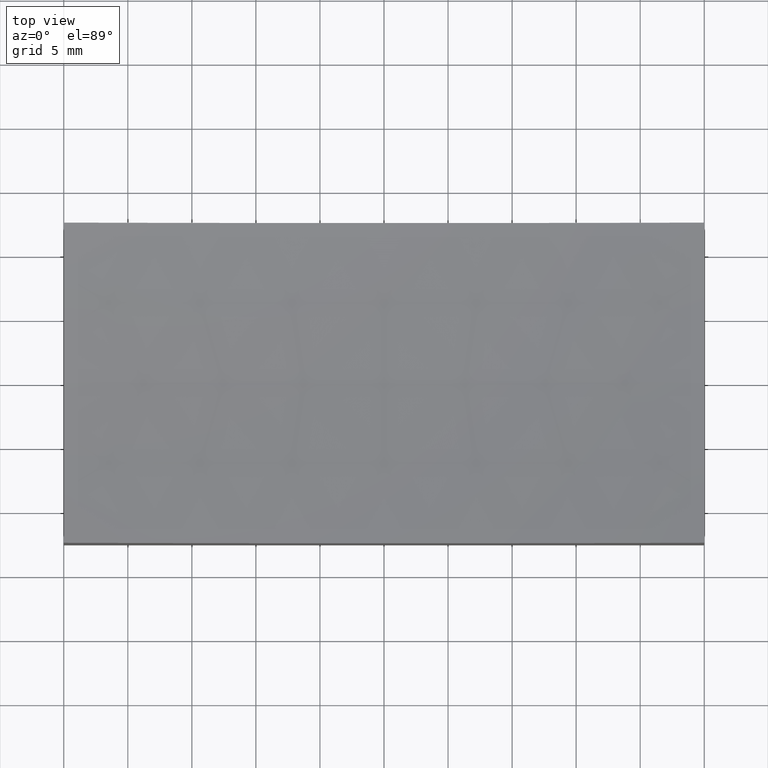
[diagram: clean part render]
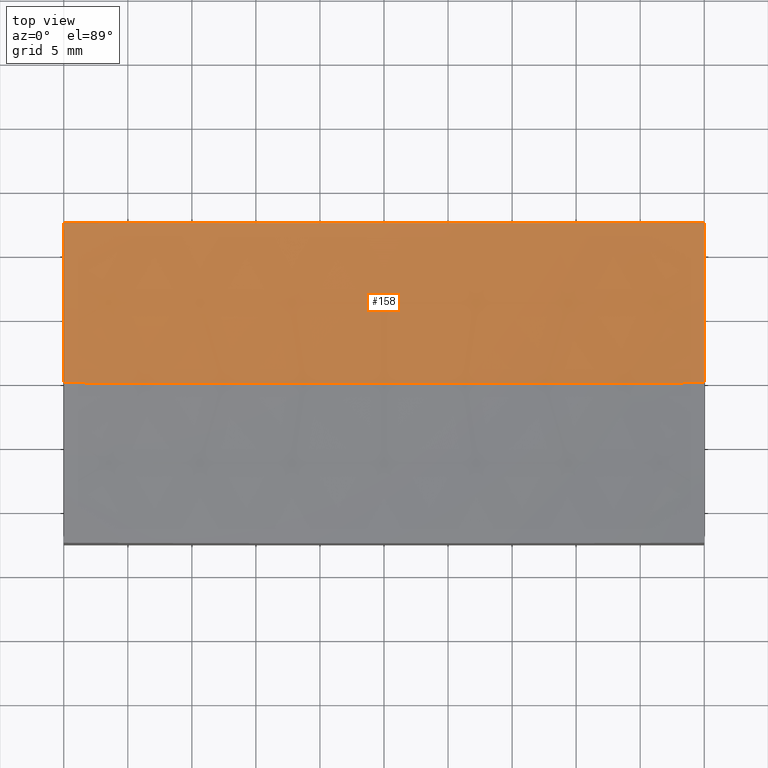
[diagram: same view with one face highlighted and labeled with its STEP entity id]
A machine part, top view. The second image highlights one B-rep face of the part: STEP entity #158.
In plain terms, the highlighted spherical surface has radius 150 mm.
Its self-contained STEP definition (entity closure, byte-faithful):
#13 = AXIS2_PLACEMENT_3D ( 'NONE', #52, #71, #64 ) ;
#14 = CARTESIAN_POINT ( 'NONE',  ( 0.000000000000000000, 0.000000000000000000, 159.0000000000000000 ) ) ;
#19 = AXIS2_PLACEMENT_3D ( 'NONE', #30, #75, #43 ) ;
#20 = CIRCLE ( 'NONE', #196, 147.9019945774903704 ) ;
#30 = CARTESIAN_POINT ( 'NONE',  ( 0.000000000000000000, 0.000000000000000000, 159.0000000000000000 ) ) ;
#32 = DIRECTION ( 'NONE',  ( 0.000000000000000000, 0.000000000000000000, -1.000000000000000000 ) ) ;
#38 = CIRCLE ( 'NONE', #219, 147.9019945774903704 ) ;
#43 = DIRECTION ( 'NONE',  ( 0.000000000000000000, 0.000000000000000000, 1.000000000000000000 ) ) ;
#48 = CARTESIAN_POINT ( 'NONE',  ( 25.00000000000000000, -6.938893903907228378E-15, 159.0000000000000000 ) ) ;
#51 = ORIENTED_EDGE ( 'NONE', *, *, #61, .T. ) ;
#52 = CARTESIAN_POINT ( 'NONE',  ( 0.000000000000000000, 0.000000000000000000, 159.0000000000000000 ) ) ;
#55 = DIRECTION ( 'NONE',  ( 1.000000000000000000, 1.224646799147353207E-16, 0.000000000000000000 ) ) ;
#61 = EDGE_CURVE ( 'NONE', #122, #223, #20, .T. ) ;
#64 = DIRECTION ( 'NONE',  ( 1.000000000000000000, 0.000000000000000000, 0.000000000000000000 ) ) ;
#70 = EDGE_LOOP ( 'NONE', ( #205, #144, #114, #51, #162 ) ) ;
#71 = DIRECTION ( 'NONE',  ( 0.000000000000000000, -1.000000000000000000, -0.000000000000000000 ) ) ;
#75 = DIRECTION ( 'NONE',  ( 0.000000000000000000, 1.000000000000000000, -0.000000000000000000 ) ) ;
#81 = DIRECTION ( 'NONE',  ( -1.407464569439270828E-16, 1.000000000000000000, 0.000000000000000000 ) ) ;
#89 = DIRECTION ( 'NONE',  ( 1.000000000000000000, -2.775557561562891351E-16, -0.000000000000000000 ) ) ;
#90 = VERTEX_POINT ( 'NONE', #92 ) ;
#91 = CARTESIAN_POINT ( 'NONE',  ( 0.000000000000000000, 12.50000000000000000, 159.0000000000000000 ) ) ;
#92 = CARTESIAN_POINT ( 'NONE',  ( -25.00000000000000000, -3.061616997868383043E-15, 11.09800542250961897 ) ) ;
#94 = CIRCLE ( 'NONE', #19, 149.9999999999999432 ) ;
#97 = EDGE_CURVE ( 'NONE', #122, #126, #94, .T. ) ;
#103 = AXIS2_PLACEMENT_3D ( 'NONE', #91, #208, #32 ) ;
#113 = FACE_OUTER_BOUND ( 'NONE', #70, .T. ) ;
#114 = ORIENTED_EDGE ( 'NONE', *, *, #97, .F. ) ;
#122 = VERTEX_POINT ( 'NONE', #130 ) ;
#124 = CIRCLE ( 'NONE', #103, 149.4782592887674184 ) ;
#126 = VERTEX_POINT ( 'NONE', #244 ) ;
#130 = CARTESIAN_POINT ( 'NONE',  ( 25.00000000000000000, -3.851859888774471706E-31, 11.09800542250961897 ) ) ;
#140 = EDGE_CURVE ( 'NONE', #223, #228, #124, .T. ) ;
#143 = DIRECTION ( 'NONE',  ( -2.814929138878541656E-16, -1.000000000000000000, 0.000000000000000000 ) ) ;
#144 = ORIENTED_EDGE ( 'NONE', *, *, #230, .T. ) ;
#158 = ADVANCED_FACE ( 'NONE', ( #113 ), #187, .F. ) ;
#162 = ORIENTED_EDGE ( 'NONE', *, *, #140, .T. ) ;
#174 = DIRECTION ( 'NONE',  ( 1.224646799147353207E-16, -1.000000000000000000, -3.185993688710303800E-35 ) ) ;
#175 = CIRCLE ( 'NONE', #250, 149.9999999999999716 ) ;
#176 = CARTESIAN_POINT ( 'NONE',  ( -25.00000000000000000, -3.469446951953614189E-15, 159.0000000000000000 ) ) ;
#181 = EDGE_CURVE ( 'NONE', #228, #90, #38, .T. ) ;
#187 = SPHERICAL_SURFACE ( 'NONE', #13, 149.9999999999999716 ) ;
#194 = CARTESIAN_POINT ( 'NONE',  ( 25.00000000000000355, 12.50000000000000000, 11.62717346810510044 ) ) ;
#196 = AXIS2_PLACEMENT_3D ( 'NONE', #48, #89, #143 ) ;
#197 = CARTESIAN_POINT ( 'NONE',  ( -25.00000000000000000, 12.50000000000000000, 11.62717346810510044 ) ) ;
#205 = ORIENTED_EDGE ( 'NONE', *, *, #181, .T. ) ;
#208 = DIRECTION ( 'NONE',  ( -0.000000000000000000, 1.000000000000000000, -0.000000000000000000 ) ) ;
#219 = AXIS2_PLACEMENT_3D ( 'NONE', #176, #249, #81 ) ;
#223 = VERTEX_POINT ( 'NONE', #194 ) ;
#228 = VERTEX_POINT ( 'NONE', #197 ) ;
#230 = EDGE_CURVE ( 'NONE', #90, #126, #175, .T. ) ;
#244 = CARTESIAN_POINT ( 'NONE',  ( 9.145827574474074517E-15, 0.000000000000000000, 9.000000000000035527 ) ) ;
#249 = DIRECTION ( 'NONE',  ( -1.000000000000000000, -1.387778780781445676E-16, 0.000000000000000000 ) ) ;
#250 = AXIS2_PLACEMENT_3D ( 'NONE', #14, #174, #55 ) ;